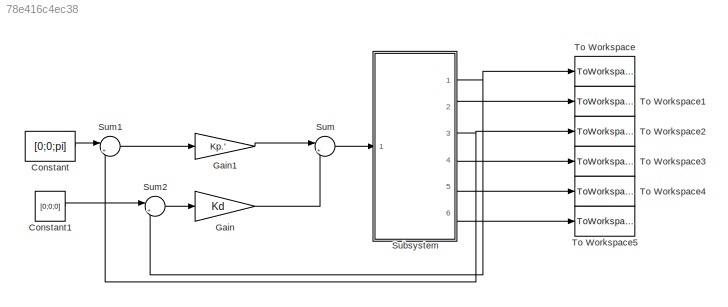
MODEL slx_78e416c4ec38
KIND model
CONFIG AbsTol = auto
CONFIG EnableMultiTasking = off
CONFIG FixedStep = dt
CONFIG MaxStep = auto
CONFIG MinStep = auto
CONFIG RelTol = 1e-3
CONFIG SampleTimeConstraint = Unconstrained
CONFIG Solver = VariableStepAuto
CONFIG SolverName = VariableStepAuto
CONFIG StartTime = 0.0
CONFIG StopTime = t_f
BLOCK [Constant] Constant
  Value = [0;0;pi]
BLOCK [Constant] Constant1
  Value = [0;0;0]
BLOCK [Gain] Gain
  Gain = Kd
  Multiplication = Matrix(K*u) (u vector)
  OutDataTypeStr = Inherit: Inherit via internal rule
  ParamDataTypeStr = Inherit: Inherit via internal rule
  SaturateOnIntegerOverflow = off
BLOCK [Gain] Gain1
  Gain = Kp.'
  Multiplication = Matrix(K*u) (u vector)
  OutDataTypeStr = Inherit: Inherit via internal rule
  ParamDataTypeStr = Inherit: Inherit via internal rule
  SaturateOnIntegerOverflow = off
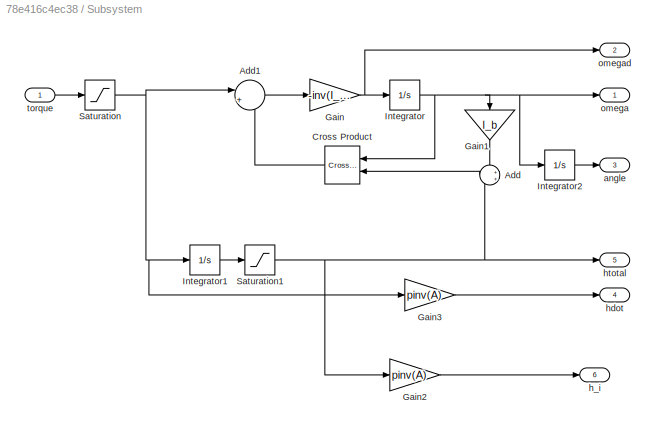
BLOCK [SubSystem] Subsystem
  Ports = [1, 6]
  RequestExecContextInheritance = off
BLOCK [Sum] Subsystem/Add
  IconShape = round
  InputSameDT = off
  OutDataTypeStr = Inherit: Inherit via internal rule
  Ports = [2, 1]
  SaturateOnIntegerOverflow = off
BLOCK [Sum] Subsystem/Add1
  IconShape = round
  InputSameDT = off
  Inputs = |++
  OutDataTypeStr = Inherit: Inherit via internal rule
  Ports = [2, 1]
  SaturateOnIntegerOverflow = off
BLOCK [Reference] Subsystem/Cross Product  REF=vrlib/Utilities/Cross Product
  Ports = [2, 1]
  SourceBlock = vrlib/Utilities/Cross Product
  SourceProductBaseCode = VR
  SourceProductName = Simulink 3D Animation
  SourceType = Cross Product
BLOCK [Gain] Subsystem/Gain
  Gain = -inv(I_b)
  Multiplication = Matrix(K*u) (u vector)
  OutDataTypeStr = Inherit: Inherit via internal rule
  ParamDataTypeStr = Inherit: Inherit via internal rule
  SaturateOnIntegerOverflow = off
BLOCK [Gain] Subsystem/Gain1
  Gain = I_b
  Multiplication = Matrix(K*u) (u vector)
  OutDataTypeStr = Inherit: Inherit via internal rule
  ParamDataTypeStr = Inherit: Inherit via internal rule
  SaturateOnIntegerOverflow = off
BLOCK [Gain] Subsystem/Gain2
  Gain = pinv(A)
  Multiplication = Matrix(K*u) (u vector)
  OutDataTypeStr = Inherit: Inherit via internal rule
  ParamDataTypeStr = Inherit: Inherit via internal rule
  SaturateOnIntegerOverflow = off
BLOCK [Gain] Subsystem/Gain3
  Gain = pinv(A)
  Multiplication = Matrix(K*u) (u vector)
  OutDataTypeStr = Inherit: Inherit via internal rule
  ParamDataTypeStr = Inherit: Inherit via internal rule
  SaturateOnIntegerOverflow = off
BLOCK [Integrator] Subsystem/Integrator
  InitialCondition = omega_B_N_t0
  Ports = [1, 1]
BLOCK [Integrator] Subsystem/Integrator1
  InitialCondition = zeros(3,1)
  Ports = [1, 1]
BLOCK [Integrator] Subsystem/Integrator2
  InitialCondition = [0;0;0]
  Ports = [1, 1]
BLOCK [Saturate] Subsystem/Saturation
  InputPortMap = u0
  LowerLimit = -0.0002
  Ports = [1, 1]
  UpperLimit = 0.0002
BLOCK [Saturate] Subsystem/Saturation1
  InputPortMap = u0
  LowerLimit = -0.0087
  Ports = [1, 1]
  UpperLimit = 0.0087
BLOCK [Outport] Subsystem/angle
  IconDisplay = Port number
  Port = 3
BLOCK [Outport] Subsystem/h_i
  IconDisplay = Port number
  Port = 6
BLOCK [Outport] Subsystem/hdot
  IconDisplay = Port number
  Port = 4
BLOCK [Outport] Subsystem/htotal
  IconDisplay = Port number
  Port = 5
BLOCK [Outport] Subsystem/omega 
  IconDisplay = Port number
BLOCK [Outport] Subsystem/omegad
  IconDisplay = Port number
  Port = 2
BLOCK [Inport] Subsystem/torque
  IconDisplay = Port number
BLOCK [Sum] Sum
  IconShape = round
  InputSameDT = off
  Inputs = |++
  OutDataTypeStr = Inherit: Inherit via internal rule
  Ports = [2, 1]
  SaturateOnIntegerOverflow = off
BLOCK [Sum] Sum1
  IconShape = round
  InputSameDT = off
  Inputs = |+-
  OutDataTypeStr = Inherit: Inherit via internal rule
  Ports = [2, 1]
  SaturateOnIntegerOverflow = off
BLOCK [Sum] Sum2
  IconShape = round
  InputSameDT = off
  Inputs = |+-
  OutDataTypeStr = Inherit: Inherit via internal rule
  Ports = [2, 1]
  SaturateOnIntegerOverflow = off
BLOCK [ToWorkspace] To Workspace
  FixptAsFi = on
  MaxDataPoints = inf
  Ports = [1]
  SampleTime = -1
  Save2DSignal = 3-D array (concatenate along third dimension)
  SaveFormat = Timeseries
  VariableName = omega
BLOCK [ToWorkspace] To Workspace1
  FixptAsFi = on
  MaxDataPoints = inf
  Ports = [1]
  SampleTime = -1
  Save2DSignal = 3-D array (concatenate along third dimension)
  SaveFormat = Timeseries
  VariableName = omegad
BLOCK [ToWorkspace] To Workspace2
  FixptAsFi = on
  MaxDataPoints = inf
  Ports = [1]
  SampleTime = -1
  Save2DSignal = 3-D array (concatenate along third dimension)
  SaveFormat = Timeseries
  VariableName = angle
BLOCK [ToWorkspace] To Workspace3
  FixptAsFi = on
  MaxDataPoints = inf
  Ports = [1]
  SampleTime = -1
  Save2DSignal = 3-D array (concatenate along third dimension)
  SaveFormat = Timeseries
  VariableName = hdot_i
BLOCK [ToWorkspace] To Workspace4
  FixptAsFi = on
  MaxDataPoints = inf
  Ports = [1]
  SampleTime = -1
  Save2DSignal = 3-D array (concatenate along third dimension)
  SaveFormat = Timeseries
  VariableName = h
BLOCK [ToWorkspace] To Workspace5
  FixptAsFi = on
  MaxDataPoints = inf
  Ports = [1]
  SampleTime = -1
  Save2DSignal = 3-D array (concatenate along third dimension)
  SaveFormat = Timeseries
  VariableName = h_i
LINE Constant1:1 -> Sum2:1
LINE Constant:1 -> Sum1:1
LINE Gain1:1 -> Sum:1
LINE Gain:1 -> Sum:2
LINE Subsystem/Add1:1 -> Subsystem/Gain:1
LINE Subsystem/Add:1 -> Subsystem/Cross Product:2
LINE Subsystem/Cross Product:1 -> Subsystem/Add1:2
LINE Subsystem/Gain1:1 -> Subsystem/Add:1
LINE Subsystem/Gain2:1 -> Subsystem/h_i:1
LINE Subsystem/Gain3:1 -> Subsystem/hdot:1
NET Subsystem/Gain:1 -> Subsystem/Integrator:1, Subsystem/omegad:1
LINE Subsystem/Integrator1:1 -> Subsystem/Saturation1:1
LINE Subsystem/Integrator2:1 -> Subsystem/angle:1
NET Subsystem/Integrator:1 -> Subsystem/Cross Product:1, Subsystem/Gain1:1, Subsystem/Integrator2:1, Subsystem/omega :1
NET Subsystem/Saturation1:1 -> Subsystem/Add:2, Subsystem/Gain2:1, Subsystem/htotal:1
NET Subsystem/Saturation:1 -> Subsystem/Add1:1, Subsystem/Gain3:1, Subsystem/Integrator1:1
LINE Subsystem/torque:1 -> Subsystem/Saturation:1
NET Subsystem:1 -> Sum2:2, To Workspace:1
LINE Subsystem:2 -> To Workspace1:1
NET Subsystem:3 -> Sum1:2, To Workspace2:1
LINE Subsystem:4 -> To Workspace3:1
LINE Subsystem:5 -> To Workspace4:1
LINE Subsystem:6 -> To Workspace5:1
LINE Sum1:1 -> Gain1:1
LINE Sum2:1 -> Gain:1
LINE Sum:1 -> Subsystem:1
note: NET lines group one-source signal fan-out (src -> all destinations, sorted); 1:1 wires keep LINE
